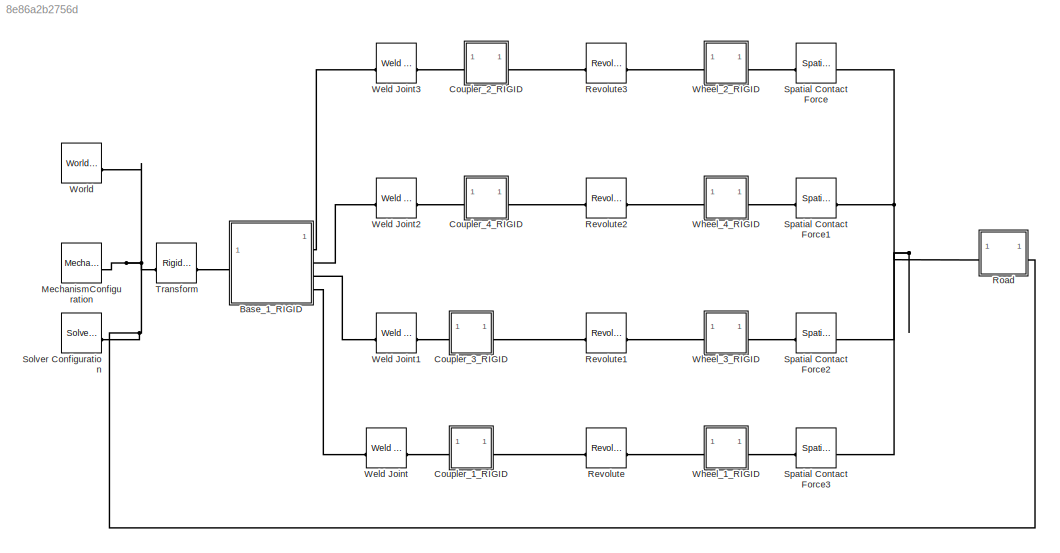
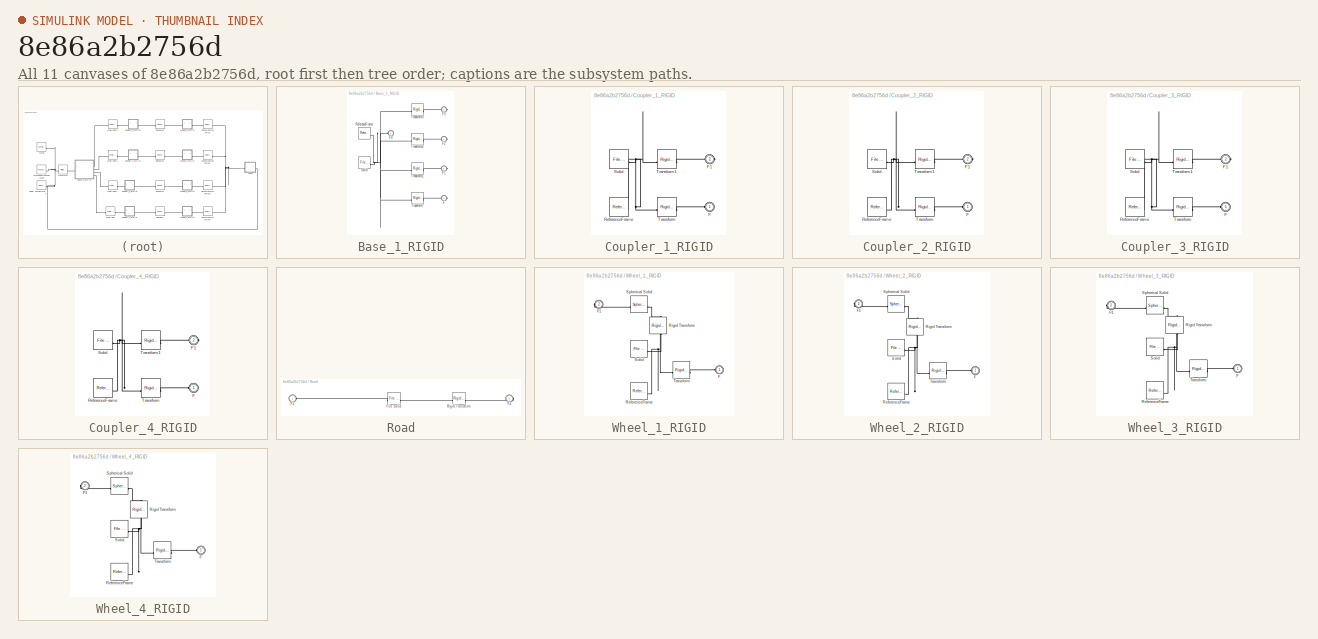
[diagram: thumbnail index - all 11 canvases of the model, root first then tree order]
MODEL slx_8e86a2b2756d
KIND model
CONFIG AbsTol = auto
CONFIG EnableMultiTasking = off
CONFIG FixedStep = auto
CONFIG MaxStep = auto
CONFIG MinStep = auto
CONFIG RelTol = 1e-3
CONFIG SampleTimeConstraint = Unconstrained
CONFIG SolverName = VariableStepAuto
CONFIG StartTime = 0.0
CONFIG StopTime = 10.0
WORKSPACE source: external: MATLAB File  (data not in archive)
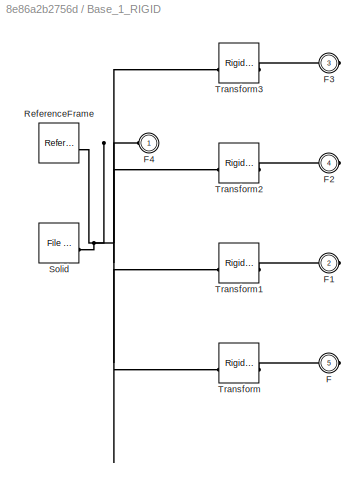
BLOCK [SubSystem] Base_1_RIGID
BLOCK [PMIOPort] Base_1_RIGID/F
  Port = 5
  Side = Right
BLOCK [PMIOPort] Base_1_RIGID/F1
  Port = 2
  Side = Right
BLOCK [PMIOPort] Base_1_RIGID/F2
  Port = 4
  Side = Right
BLOCK [PMIOPort] Base_1_RIGID/F3
  Port = 3
  Side = Right
BLOCK [PMIOPort] Base_1_RIGID/F4
  Side = Left
BLOCK [Reference] Base_1_RIGID/ReferenceFrame  REF=sm_lib/Frames and
Transforms/Reference
Frame
  SourceBlock = sm_lib/Frames and\nTransforms/Reference\nFrame
  SourceType = Reference\nFrame
BLOCK [Reference] Base_1_RIGID/Solid  REF=sm_lib/Body Elements/File Solid
  SourceBlock = sm_lib/Body Elements/File Solid
  SourceType = File Solid
BLOCK [Reference] Base_1_RIGID/Transform  REF=sm_lib/Frames and
Transforms/Rigid
Transform
  SourceBlock = sm_lib/Frames and\nTransforms/Rigid\nTransform
  SourceType = Rigid\nTransform
BLOCK [Reference] Base_1_RIGID/Transform1  REF=sm_lib/Frames and
Transforms/Rigid
Transform
  SourceBlock = sm_lib/Frames and\nTransforms/Rigid\nTransform
  SourceType = Rigid\nTransform
BLOCK [Reference] Base_1_RIGID/Transform2  REF=sm_lib/Frames and
Transforms/Rigid
Transform
  SourceBlock = sm_lib/Frames and\nTransforms/Rigid\nTransform
  SourceType = Rigid\nTransform
BLOCK [Reference] Base_1_RIGID/Transform3  REF=sm_lib/Frames and
Transforms/Rigid
Transform
  SourceBlock = sm_lib/Frames and\nTransforms/Rigid\nTransform
  SourceType = Rigid\nTransform
BLOCK [SubSystem] Coupler_1_RIGID
BLOCK [PMIOPort] Coupler_1_RIGID/F
  Side = Left
BLOCK [PMIOPort] Coupler_1_RIGID/F1
  Port = 2
  Side = Right
BLOCK [Reference] Coupler_1_RIGID/ReferenceFrame  REF=sm_lib/Frames and
Transforms/Reference
Frame
  SourceBlock = sm_lib/Frames and\nTransforms/Reference\nFrame
  SourceType = Reference\nFrame
BLOCK [Reference] Coupler_1_RIGID/Solid  REF=sm_lib/Body Elements/File Solid
  SourceBlock = sm_lib/Body Elements/File Solid
  SourceType = File Solid
BLOCK [Reference] Coupler_1_RIGID/Transform  REF=sm_lib/Frames and
Transforms/Rigid
Transform
  SourceBlock = sm_lib/Frames and\nTransforms/Rigid\nTransform
  SourceType = Rigid\nTransform
BLOCK [Reference] Coupler_1_RIGID/Transform1  REF=sm_lib/Frames and
Transforms/Rigid
Transform
  SourceBlock = sm_lib/Frames and\nTransforms/Rigid\nTransform
  SourceType = Rigid\nTransform
BLOCK [SubSystem] Coupler_2_RIGID
BLOCK [PMIOPort] Coupler_2_RIGID/F
  Side = Left
BLOCK [PMIOPort] Coupler_2_RIGID/F1
  Port = 2
  Side = Right
BLOCK [Reference] Coupler_2_RIGID/ReferenceFrame  REF=sm_lib/Frames and
Transforms/Reference
Frame
  SourceBlock = sm_lib/Frames and\nTransforms/Reference\nFrame
  SourceType = Reference\nFrame
BLOCK [Reference] Coupler_2_RIGID/Solid  REF=sm_lib/Body Elements/File Solid
  SourceBlock = sm_lib/Body Elements/File Solid
  SourceType = File Solid
BLOCK [Reference] Coupler_2_RIGID/Transform  REF=sm_lib/Frames and
Transforms/Rigid
Transform
  SourceBlock = sm_lib/Frames and\nTransforms/Rigid\nTransform
  SourceType = Rigid\nTransform
BLOCK [Reference] Coupler_2_RIGID/Transform1  REF=sm_lib/Frames and
Transforms/Rigid
Transform
  SourceBlock = sm_lib/Frames and\nTransforms/Rigid\nTransform
  SourceType = Rigid\nTransform
BLOCK [SubSystem] Coupler_3_RIGID
BLOCK [PMIOPort] Coupler_3_RIGID/F
  Side = Left
BLOCK [PMIOPort] Coupler_3_RIGID/F1
  Port = 2
  Side = Right
BLOCK [Reference] Coupler_3_RIGID/ReferenceFrame  REF=sm_lib/Frames and
Transforms/Reference
Frame
  SourceBlock = sm_lib/Frames and\nTransforms/Reference\nFrame
  SourceType = Reference\nFrame
BLOCK [Reference] Coupler_3_RIGID/Solid  REF=sm_lib/Body Elements/File Solid
  SourceBlock = sm_lib/Body Elements/File Solid
  SourceType = File Solid
BLOCK [Reference] Coupler_3_RIGID/Transform  REF=sm_lib/Frames and
Transforms/Rigid
Transform
  SourceBlock = sm_lib/Frames and\nTransforms/Rigid\nTransform
  SourceType = Rigid\nTransform
BLOCK [Reference] Coupler_3_RIGID/Transform1  REF=sm_lib/Frames and
Transforms/Rigid
Transform
  SourceBlock = sm_lib/Frames and\nTransforms/Rigid\nTransform
  SourceType = Rigid\nTransform
BLOCK [SubSystem] Coupler_4_RIGID
BLOCK [PMIOPort] Coupler_4_RIGID/F
  Side = Left
BLOCK [PMIOPort] Coupler_4_RIGID/F1
  Port = 2
  Side = Right
BLOCK [Reference] Coupler_4_RIGID/ReferenceFrame  REF=sm_lib/Frames and
Transforms/Reference
Frame
  SourceBlock = sm_lib/Frames and\nTransforms/Reference\nFrame
  SourceType = Reference\nFrame
BLOCK [Reference] Coupler_4_RIGID/Solid  REF=sm_lib/Body Elements/File Solid
  SourceBlock = sm_lib/Body Elements/File Solid
  SourceType = File Solid
BLOCK [Reference] Coupler_4_RIGID/Transform  REF=sm_lib/Frames and
Transforms/Rigid
Transform
  SourceBlock = sm_lib/Frames and\nTransforms/Rigid\nTransform
  SourceType = Rigid\nTransform
BLOCK [Reference] Coupler_4_RIGID/Transform1  REF=sm_lib/Frames and
Transforms/Rigid
Transform
  SourceBlock = sm_lib/Frames and\nTransforms/Rigid\nTransform
  SourceType = Rigid\nTransform
BLOCK [Reference] MechanismConfiguration  REF=sm_lib/Utilities/Mechanism
Configuration
  SourceBlock = sm_lib/Utilities/Mechanism\nConfiguration
  SourceType = Mechanism\nConfiguration
BLOCK [Reference] Revolute  REF=sm_lib/Joints/Revolute Joint
  SourceBlock = sm_lib/Joints/Revolute Joint
  SourceType = Revolute Joint
BLOCK [Reference] Revolute1  REF=sm_lib/Joints/Revolute Joint
  SourceBlock = sm_lib/Joints/Revolute Joint
  SourceType = Revolute Joint
BLOCK [Reference] Revolute2  REF=sm_lib/Joints/Revolute Joint
  SourceBlock = sm_lib/Joints/Revolute Joint
  SourceType = Revolute Joint
BLOCK [Reference] Revolute3  REF=sm_lib/Joints/Revolute Joint
  SourceBlock = sm_lib/Joints/Revolute Joint
  SourceType = Revolute Joint
BLOCK [SubSystem] Road
BLOCK [PMIOPort] Road/F1
  Side = Left
BLOCK [PMIOPort] Road/F2
  Port = 2
  Side = Right
BLOCK [Reference] Road/File Solid  REF=sm_lib/Body Elements/File Solid
  SourceBlock = sm_lib/Body Elements/File Solid
  SourceType = File Solid
BLOCK [Reference] Road/Rigid Transform  REF=sm_lib/Frames and
Transforms/Rigid
Transform
  SourceBlock = sm_lib/Frames and\nTransforms/Rigid\nTransform
  SourceType = Rigid\nTransform
BLOCK [Reference] Solver Configuration  REF=nesl_utility/Solver
Configuration
  SourceBlock = nesl_utility/Solver\nConfiguration
  SourceType = Solver\nConfiguration
BLOCK [Reference] Spatial Contact Force  REF=sm_lib/Forces and
Torques/Spatial
Contact Force
  SourceBlock = sm_lib/Forces and\nTorques/Spatial\nContact Force
  SourceType = Spatial\nContact Force
BLOCK [Reference] Spatial Contact Force1  REF=sm_lib/Forces and
Torques/Spatial
Contact Force
  SourceBlock = sm_lib/Forces and\nTorques/Spatial\nContact Force
  SourceType = Spatial\nContact Force
BLOCK [Reference] Spatial Contact Force2  REF=sm_lib/Forces and
Torques/Spatial
Contact Force
  SourceBlock = sm_lib/Forces and\nTorques/Spatial\nContact Force
  SourceType = Spatial\nContact Force
BLOCK [Reference] Spatial Contact Force3  REF=sm_lib/Forces and
Torques/Spatial
Contact Force
  SourceBlock = sm_lib/Forces and\nTorques/Spatial\nContact Force
  SourceType = Spatial\nContact Force
BLOCK [Reference] Transform  REF=sm_lib/Frames and
Transforms/Rigid
Transform
  SourceBlock = sm_lib/Frames and\nTransforms/Rigid\nTransform
  SourceType = Rigid\nTransform
BLOCK [Reference] Weld Joint  REF=sm_lib/Joints/Weld Joint
  SourceBlock = sm_lib/Joints/Weld Joint
  SourceType = Weld Joint
BLOCK [Reference] Weld Joint1  REF=sm_lib/Joints/Weld Joint
  SourceBlock = sm_lib/Joints/Weld Joint
  SourceType = Weld Joint
BLOCK [Reference] Weld Joint2  REF=sm_lib/Joints/Weld Joint
  SourceBlock = sm_lib/Joints/Weld Joint
  SourceType = Weld Joint
BLOCK [Reference] Weld Joint3  REF=sm_lib/Joints/Weld Joint
  SourceBlock = sm_lib/Joints/Weld Joint
  SourceType = Weld Joint
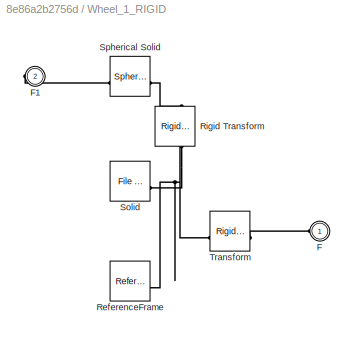
BLOCK [SubSystem] Wheel_1_RIGID
BLOCK [PMIOPort] Wheel_1_RIGID/F
  Side = Left
BLOCK [PMIOPort] Wheel_1_RIGID/F1
  Port = 2
  Side = Right
BLOCK [Reference] Wheel_1_RIGID/ReferenceFrame  REF=sm_lib/Frames and
Transforms/Reference
Frame
  SourceBlock = sm_lib/Frames and\nTransforms/Reference\nFrame
  SourceType = Reference\nFrame
BLOCK [Reference] Wheel_1_RIGID/Rigid Transform  REF=sm_lib/Frames and
Transforms/Rigid
Transform
  NameLocation = right
  SourceBlock = sm_lib/Frames and\nTransforms/Rigid\nTransform
  SourceType = Rigid\nTransform
BLOCK [Reference] Wheel_1_RIGID/Solid  REF=sm_lib/Body Elements/File Solid
  SourceBlock = sm_lib/Body Elements/File Solid
  SourceType = File Solid
BLOCK [Reference] Wheel_1_RIGID/Spherical Solid  REF=sm_lib/Body Elements/Spherical Solid
  SourceBlock = sm_lib/Body Elements/Spherical Solid
  SourceType = Spherical Solid
BLOCK [Reference] Wheel_1_RIGID/Transform  REF=sm_lib/Frames and
Transforms/Rigid
Transform
  SourceBlock = sm_lib/Frames and\nTransforms/Rigid\nTransform
  SourceType = Rigid\nTransform
BLOCK [SubSystem] Wheel_2_RIGID
BLOCK [PMIOPort] Wheel_2_RIGID/F
  Side = Left
BLOCK [PMIOPort] Wheel_2_RIGID/F1
  Port = 2
  Side = Right
BLOCK [Reference] Wheel_2_RIGID/ReferenceFrame  REF=sm_lib/Frames and
Transforms/Reference
Frame
  SourceBlock = sm_lib/Frames and\nTransforms/Reference\nFrame
  SourceType = Reference\nFrame
BLOCK [Reference] Wheel_2_RIGID/Rigid Transform  REF=sm_lib/Frames and
Transforms/Rigid
Transform
  NameLocation = right
  SourceBlock = sm_lib/Frames and\nTransforms/Rigid\nTransform
  SourceType = Rigid\nTransform
BLOCK [Reference] Wheel_2_RIGID/Solid  REF=sm_lib/Body Elements/File Solid
  SourceBlock = sm_lib/Body Elements/File Solid
  SourceType = File Solid
BLOCK [Reference] Wheel_2_RIGID/Spherical Solid  REF=sm_lib/Body Elements/Spherical Solid
  SourceBlock = sm_lib/Body Elements/Spherical Solid
  SourceType = Spherical Solid
BLOCK [Reference] Wheel_2_RIGID/Transform  REF=sm_lib/Frames and
Transforms/Rigid
Transform
  SourceBlock = sm_lib/Frames and\nTransforms/Rigid\nTransform
  SourceType = Rigid\nTransform
BLOCK [SubSystem] Wheel_3_RIGID
BLOCK [PMIOPort] Wheel_3_RIGID/F
  Side = Left
BLOCK [PMIOPort] Wheel_3_RIGID/F1
  Port = 2
  Side = Right
BLOCK [Reference] Wheel_3_RIGID/ReferenceFrame  REF=sm_lib/Frames and
Transforms/Reference
Frame
  SourceBlock = sm_lib/Frames and\nTransforms/Reference\nFrame
  SourceType = Reference\nFrame
BLOCK [Reference] Wheel_3_RIGID/Rigid Transform  REF=sm_lib/Frames and
Transforms/Rigid
Transform
  NameLocation = right
  SourceBlock = sm_lib/Frames and\nTransforms/Rigid\nTransform
  SourceType = Rigid\nTransform
BLOCK [Reference] Wheel_3_RIGID/Solid  REF=sm_lib/Body Elements/File Solid
  SourceBlock = sm_lib/Body Elements/File Solid
  SourceType = File Solid
BLOCK [Reference] Wheel_3_RIGID/Spherical Solid  REF=sm_lib/Body Elements/Spherical Solid
  SourceBlock = sm_lib/Body Elements/Spherical Solid
  SourceType = Spherical Solid
BLOCK [Reference] Wheel_3_RIGID/Transform  REF=sm_lib/Frames and
Transforms/Rigid
Transform
  SourceBlock = sm_lib/Frames and\nTransforms/Rigid\nTransform
  SourceType = Rigid\nTransform
BLOCK [SubSystem] Wheel_4_RIGID
BLOCK [PMIOPort] Wheel_4_RIGID/F
  Side = Left
BLOCK [PMIOPort] Wheel_4_RIGID/F1
  Port = 2
  Side = Right
BLOCK [Reference] Wheel_4_RIGID/ReferenceFrame  REF=sm_lib/Frames and
Transforms/Reference
Frame
  SourceBlock = sm_lib/Frames and\nTransforms/Reference\nFrame
  SourceType = Reference\nFrame
BLOCK [Reference] Wheel_4_RIGID/Rigid Transform  REF=sm_lib/Frames and
Transforms/Rigid
Transform
  NameLocation = right
  SourceBlock = sm_lib/Frames and\nTransforms/Rigid\nTransform
  SourceType = Rigid\nTransform
BLOCK [Reference] Wheel_4_RIGID/Solid  REF=sm_lib/Body Elements/File Solid
  SourceBlock = sm_lib/Body Elements/File Solid
  SourceType = File Solid
BLOCK [Reference] Wheel_4_RIGID/Spherical Solid  REF=sm_lib/Body Elements/Spherical Solid
  SourceBlock = sm_lib/Body Elements/Spherical Solid
  SourceType = Spherical Solid
BLOCK [Reference] Wheel_4_RIGID/Transform  REF=sm_lib/Frames and
Transforms/Rigid
Transform
  SourceBlock = sm_lib/Frames and\nTransforms/Rigid\nTransform
  SourceType = Rigid\nTransform
BLOCK [Reference] World  REF=sm_lib/Frames and
Transforms/World Frame
  SourceBlock = sm_lib/Frames and\nTransforms/World Frame
  SourceType = World Frame
PLINE Base_1_RIGID/F1:RConn1 -- Base_1_RIGID/Transform1:RConn1
PLINE Base_1_RIGID/F2:RConn1 -- Base_1_RIGID/Transform2:RConn1
PLINE Base_1_RIGID/F3:RConn1 -- Base_1_RIGID/Transform3:RConn1
PNET net1: Base_1_RIGID/F4:RConn1 -- Base_1_RIGID/ReferenceFrame:RConn1 -- Base_1_RIGID/Solid:RConn1 -- Base_1_RIGID/Transform1:LConn1 -- Base_1_RIGID/Transform2:LConn1 -- Base_1_RIGID/Transform3:LConn1 -- Base_1_RIGID/Transform:LConn1
PLINE Base_1_RIGID/F:RConn1 -- Base_1_RIGID/Transform:RConn1
PLINE Base_1_RIGID:LConn1 -- Transform:RConn1
PLINE Base_1_RIGID:RConn1 -- Weld Joint3:LConn1
PLINE Base_1_RIGID:RConn2 -- Weld Joint2:LConn1
PLINE Base_1_RIGID:RConn3 -- Weld Joint1:LConn1
PLINE Base_1_RIGID:RConn4 -- Weld Joint:LConn1
PLINE Coupler_1_RIGID/F1:RConn1 -- Coupler_1_RIGID/Transform1:RConn1
PLINE Coupler_1_RIGID/F:RConn1 -- Coupler_1_RIGID/Transform:RConn1
PNET net2: Coupler_1_RIGID/ReferenceFrame:RConn1 -- Coupler_1_RIGID/Solid:RConn1 -- Coupler_1_RIGID/Transform1:LConn1 -- Coupler_1_RIGID/Transform:LConn1
PLINE Coupler_1_RIGID:LConn1 -- Weld Joint:RConn1
PLINE Coupler_1_RIGID:RConn1 -- Revolute:RConn1
PLINE Coupler_2_RIGID/F1:RConn1 -- Coupler_2_RIGID/Transform1:RConn1
PLINE Coupler_2_RIGID/F:RConn1 -- Coupler_2_RIGID/Transform:RConn1
PNET net3: Coupler_2_RIGID/ReferenceFrame:RConn1 -- Coupler_2_RIGID/Solid:RConn1 -- Coupler_2_RIGID/Transform1:LConn1 -- Coupler_2_RIGID/Transform:LConn1
PLINE Coupler_2_RIGID:LConn1 -- Weld Joint3:RConn1
PLINE Coupler_2_RIGID:RConn1 -- Revolute3:RConn1
PLINE Coupler_3_RIGID/F1:RConn1 -- Coupler_3_RIGID/Transform1:RConn1
PLINE Coupler_3_RIGID/F:RConn1 -- Coupler_3_RIGID/Transform:RConn1
PNET net4: Coupler_3_RIGID/ReferenceFrame:RConn1 -- Coupler_3_RIGID/Solid:RConn1 -- Coupler_3_RIGID/Transform1:LConn1 -- Coupler_3_RIGID/Transform:LConn1
PLINE Coupler_3_RIGID:LConn1 -- Weld Joint1:RConn1
PLINE Coupler_3_RIGID:RConn1 -- Revolute1:LConn1
PLINE Coupler_4_RIGID/F1:RConn1 -- Coupler_4_RIGID/Transform1:RConn1
PLINE Coupler_4_RIGID/F:RConn1 -- Coupler_4_RIGID/Transform:RConn1
PNET net5: Coupler_4_RIGID/ReferenceFrame:RConn1 -- Coupler_4_RIGID/Solid:RConn1 -- Coupler_4_RIGID/Transform1:LConn1 -- Coupler_4_RIGID/Transform:LConn1
PLINE Coupler_4_RIGID:LConn1 -- Weld Joint2:RConn1
PLINE Coupler_4_RIGID:RConn1 -- Revolute2:LConn1
PNET net6: MechanismConfiguration:RConn1 -- Road:RConn1 -- Solver Configuration:RConn1 -- Transform:LConn1 -- World:RConn1
PLINE Revolute1:RConn1 -- Wheel_3_RIGID:LConn1
PLINE Revolute2:RConn1 -- Wheel_4_RIGID:LConn1
PLINE Revolute3:LConn1 -- Wheel_2_RIGID:LConn1
PLINE Revolute:LConn1 -- Wheel_1_RIGID:LConn1
PLINE Road/F1:RConn1 -- Road/File Solid:LConn1
PLINE Road/F2:RConn1 -- Road/Rigid Transform:LConn1
PLINE Road/File Solid:RConn1 -- Road/Rigid Transform:RConn1
PNET net7: Road:LConn1 -- Spatial Contact Force1:LConn1 -- Spatial Contact Force2:LConn1 -- Spatial Contact Force3:LConn1 -- Spatial Contact Force:LConn1
PLINE Spatial Contact Force1:RConn1 -- Wheel_4_RIGID:RConn1
PLINE Spatial Contact Force2:RConn1 -- Wheel_3_RIGID:RConn1
PLINE Spatial Contact Force3:RConn1 -- Wheel_1_RIGID:RConn1
PLINE Spatial Contact Force:RConn1 -- Wheel_2_RIGID:RConn1
PLINE Wheel_1_RIGID/F1:RConn1 -- Wheel_1_RIGID/Spherical Solid:LConn1
PLINE Wheel_1_RIGID/F:RConn1 -- Wheel_1_RIGID/Transform:RConn1
PNET net8: Wheel_1_RIGID/ReferenceFrame:RConn1 -- Wheel_1_RIGID/Rigid Transform:LConn1 -- Wheel_1_RIGID/Solid:RConn1 -- Wheel_1_RIGID/Transform:LConn1
PLINE Wheel_1_RIGID/Rigid Transform:RConn1 -- Wheel_1_RIGID/Spherical Solid:RConn1
PLINE Wheel_2_RIGID/F1:RConn1 -- Wheel_2_RIGID/Spherical Solid:LConn1
PLINE Wheel_2_RIGID/F:RConn1 -- Wheel_2_RIGID/Transform:RConn1
PNET net9: Wheel_2_RIGID/ReferenceFrame:RConn1 -- Wheel_2_RIGID/Rigid Transform:LConn1 -- Wheel_2_RIGID/Solid:RConn1 -- Wheel_2_RIGID/Transform:LConn1
PLINE Wheel_2_RIGID/Rigid Transform:RConn1 -- Wheel_2_RIGID/Spherical Solid:RConn1
PLINE Wheel_3_RIGID/F1:RConn1 -- Wheel_3_RIGID/Spherical Solid:LConn1
PLINE Wheel_3_RIGID/F:RConn1 -- Wheel_3_RIGID/Transform:RConn1
PNET net10: Wheel_3_RIGID/ReferenceFrame:RConn1 -- Wheel_3_RIGID/Rigid Transform:LConn1 -- Wheel_3_RIGID/Solid:RConn1 -- Wheel_3_RIGID/Transform:LConn1
PLINE Wheel_3_RIGID/Rigid Transform:RConn1 -- Wheel_3_RIGID/Spherical Solid:RConn1
PLINE Wheel_4_RIGID/F1:RConn1 -- Wheel_4_RIGID/Spherical Solid:LConn1
PLINE Wheel_4_RIGID/F:RConn1 -- Wheel_4_RIGID/Transform:RConn1
PNET net11: Wheel_4_RIGID/ReferenceFrame:RConn1 -- Wheel_4_RIGID/Rigid Transform:LConn1 -- Wheel_4_RIGID/Solid:RConn1 -- Wheel_4_RIGID/Transform:LConn1
PLINE Wheel_4_RIGID/Rigid Transform:RConn1 -- Wheel_4_RIGID/Spherical Solid:RConn1
note: PNET lines group multi-terminal physical nets as a canonical sorted terminal list (undirected conserving connections); 2-terminal nets keep the pairwise PLINE form
